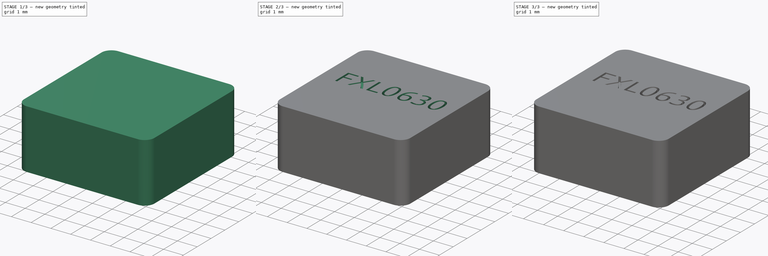
[diagram: build sequence overview — one tinted view per stage of 3, left to right]
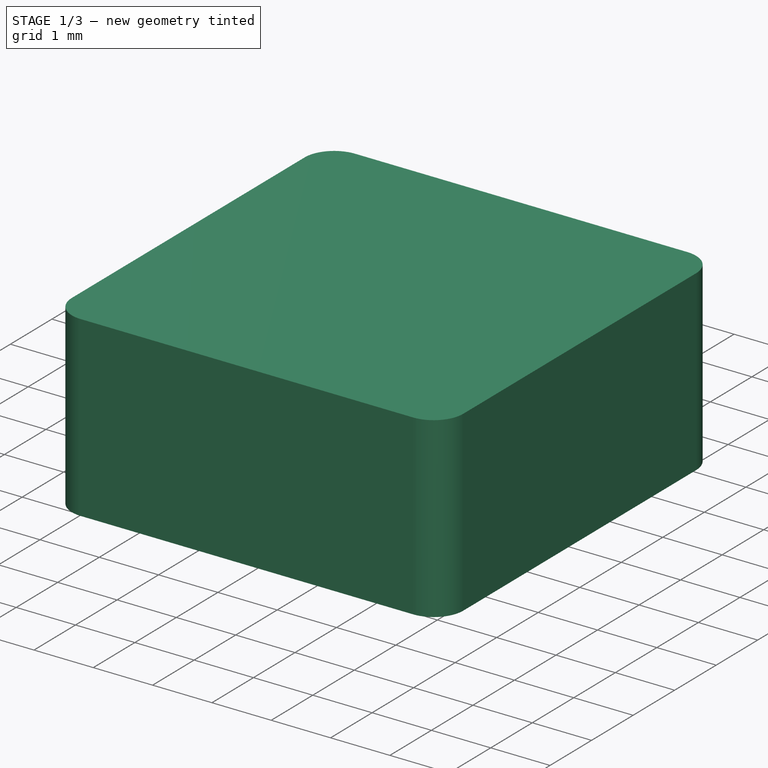
[diagram: stage 1 of 3 — iso view after this stage's code; geometry added in this stage tinted green]
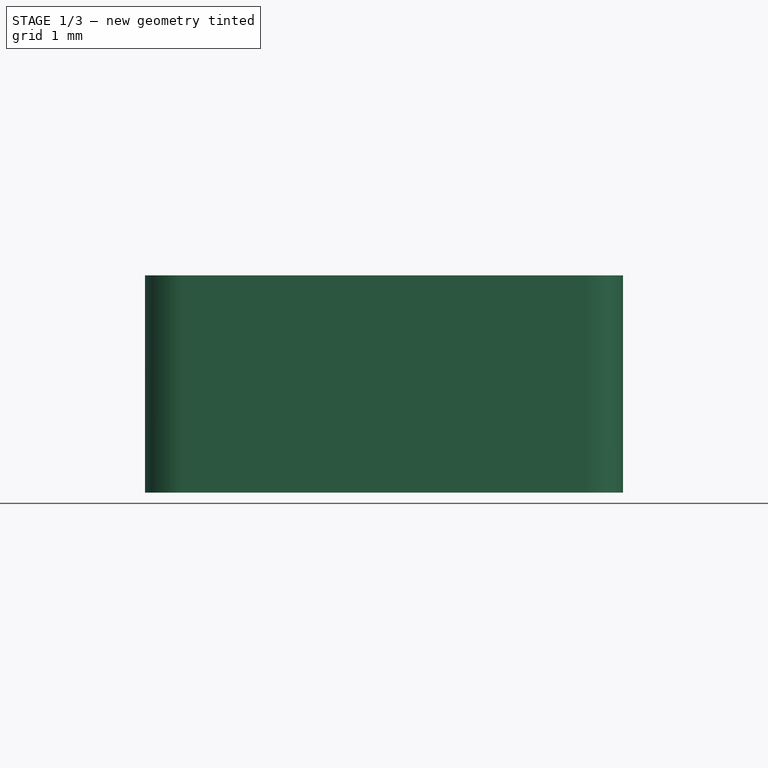
[diagram: stage 1 of 3 — front view after this stage's code; geometry added in this stage tinted green]
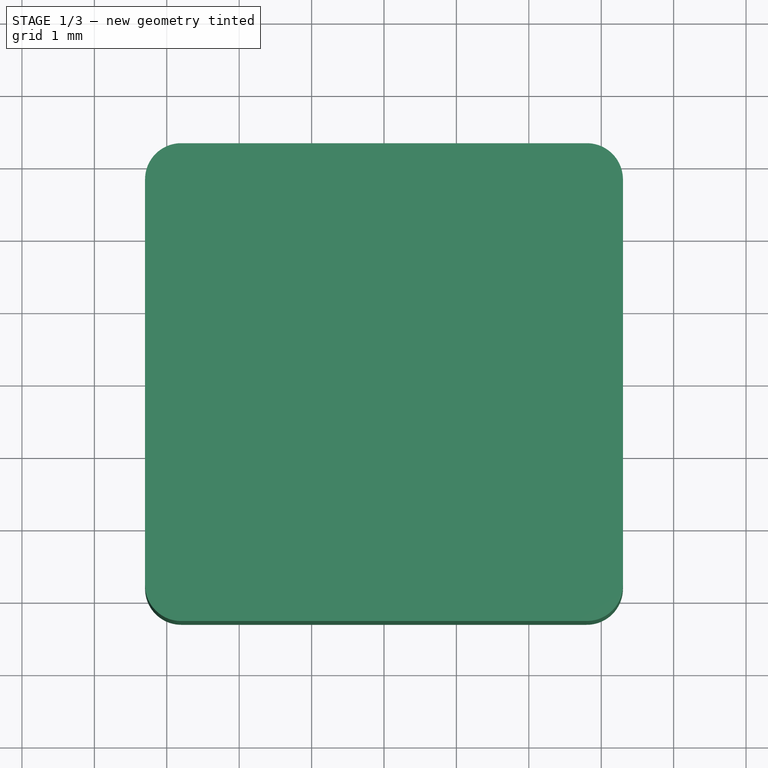
[diagram: stage 1 of 3 — top view after this stage's code; geometry added in this stage tinted green]
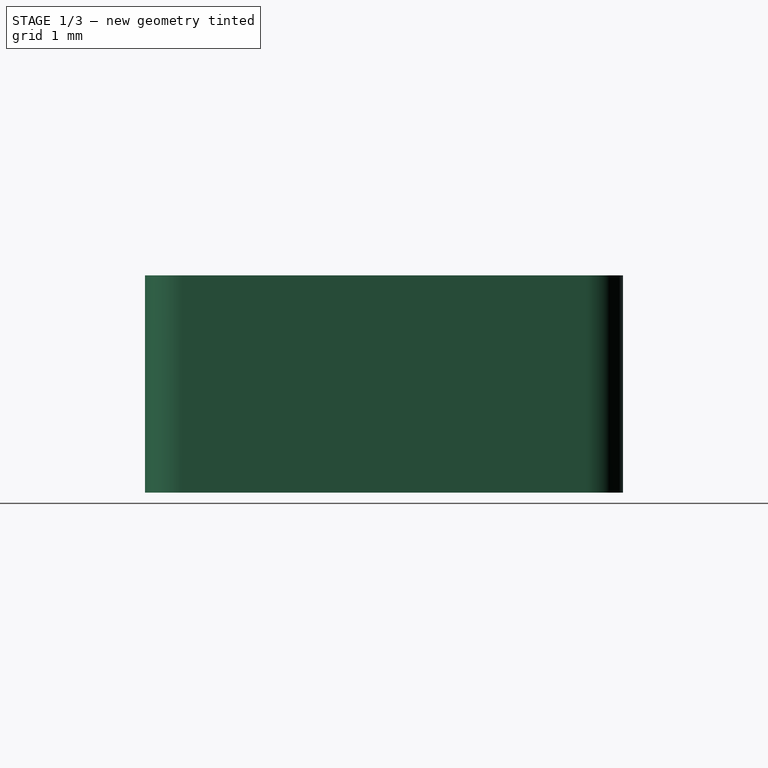
[diagram: stage 1 of 3 — right view after this stage's code; geometry added in this stage tinted green]
FCSTD DOCUMENT  (FreeCAD 1.0R39319 (Git))
Label: IND-FXL0630
License: All rights reserved
LicenseURL: http://en.wikipedia.org/wiki/All_rights_reserved
objects: Sketcher::SketchObject×2, PartDesign::Pad×2, PartDesign::Body×2, App::Part×2, Part::Mirroring×1, PartDesign::Fillet×1, Part::Part2DObjectPython×1, PartDesign::Pocket×1
note: 20 computed .brp shape members not serialized (recipe doc carries the construction recipe); baked Part::Feature solids carry a one-line shape summary decoded from their .brp

FEATURE [Sketcher::SketchObject] Sketch
  ArcFitTolerance = 0
  AttachmentSupport = -> [XY_Plane002]
  FullyConstrained = true
  MakeInternals = false
  MapMode = 5
  sketch-geometry (5):
    g0: LineSegment StartX=-3.3 StartY=-3.3 StartZ=0 EndX=-3.3 EndY=3.3 EndZ=0
    g1: LineSegment StartX=-3.3 StartY=3.3 StartZ=0 EndX=3.3 EndY=3.3 EndZ=0
    g2: LineSegment StartX=3.3 StartY=3.3 StartZ=0 EndX=3.3 EndY=-3.3 EndZ=0
    g3: LineSegment StartX=3.3 StartY=-3.3 StartZ=0 EndX=-3.3 EndY=-3.3 EndZ=0
    g4: GeomPoint [constr] X=0 Y=0 Z=0
  constraints (12):
    c: Coincident(g0,g1)
    c: Coincident(g1,g2)
    c: Coincident(g2,g3)
    c: Coincident(g3,g0)
    c: Horizontal(g1)
    c: Horizontal(g3)
    c: Vertical(g0)
    c: Vertical(g2)
    c: Symmetric(g1,g0,g4)
    c: Coincident(g4,g-1)
    c: DistanceX(g1,g1) = 6.6
    c: DistanceY(g2,g2) = 6.6
FEATURE [PartDesign::Pad] Pad
  Direction = (0,0,1)
  Length = 3
  Length2 = 10
  Profile = -> Sketch
  ReferenceAxis = -> Sketch [N_Axis]
  Suppressed = false
  Type = 0
FEATURE [App::Part] Part001  label="solderpads"
  Group = -> [Body001,Part__Mirroring]
  Origin = -> Origin001
FEATURE [PartDesign::Fillet] Fillet
  Base = -> Pad [Edge1,Edge8,Edge5,Edge2]
  BaseFeature = -> Pad
  Radius = 0.5
  SupportTransform = false
  Suppressed = false
  UseAllEdges = false
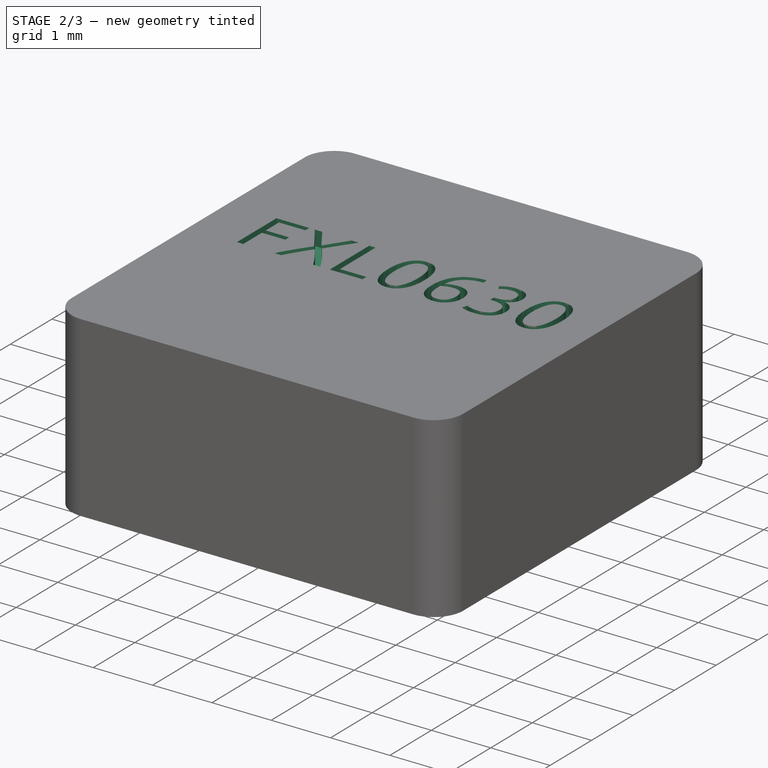
[diagram: stage 2 of 3 — iso view after this stage's code; geometry added in this stage tinted green]
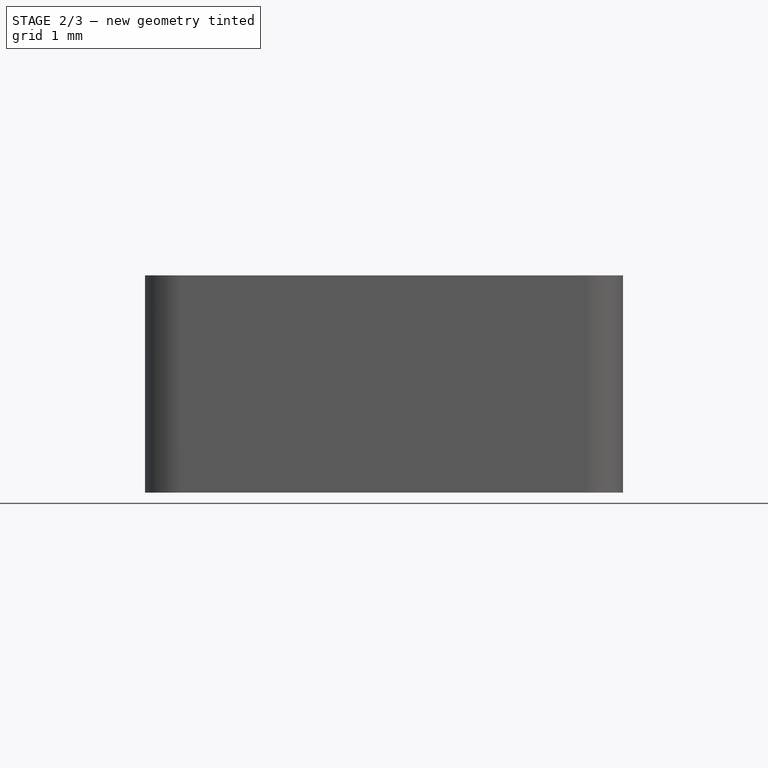
[diagram: stage 2 of 3 — front view after this stage's code; geometry added in this stage tinted green]
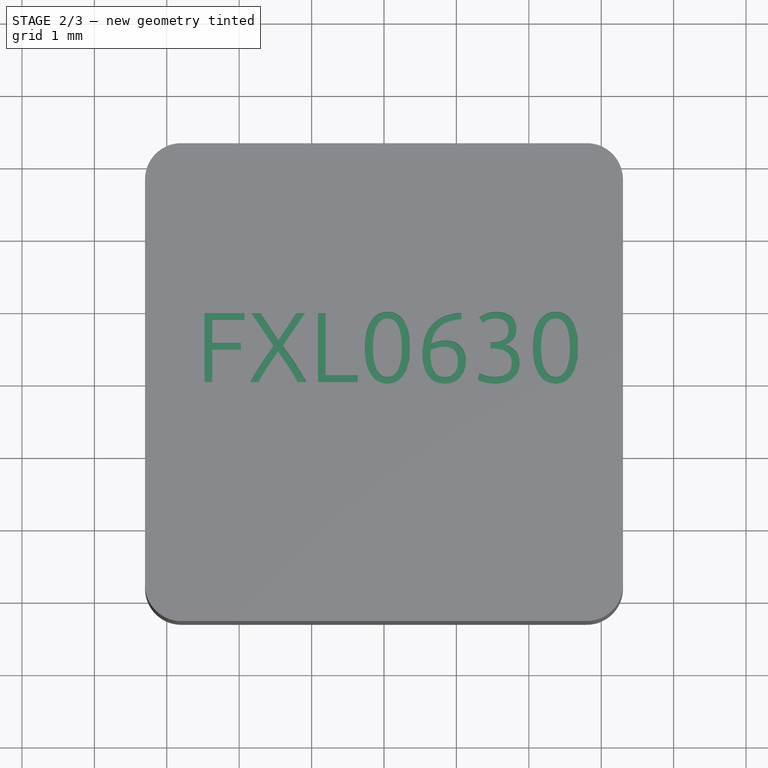
[diagram: stage 2 of 3 — top view after this stage's code; geometry added in this stage tinted green]
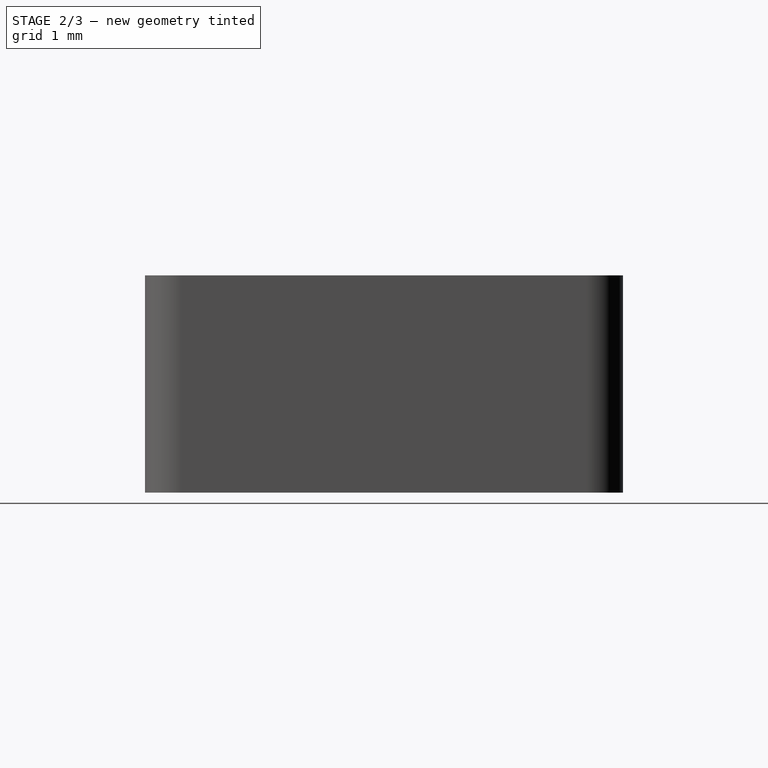
[diagram: stage 2 of 3 — right view after this stage's code; geometry added in this stage tinted green]
FEATURE [App::Part] Part  label="cover"
  Group = -> [Body]
  Origin = -> Origin
FEATURE [PartDesign::Body] Body  label="coverbody"
  AllowCompound = false
  Group = -> [Sketch,Pad,Fillet,ShapeString001,Pocket]
  Origin = -> Origin002
  Placement = pos=(0,0,0.25) rot=(0,0,1;0rad)
  Tip = -> Pocket
FEATURE [Part::Part2DObjectPython] ShapeString001  # Draft 2D object (typed FeaturePython)
  AttachmentOffset = pos=(-2.6,0,0) rot=(0,0,1;0rad)
  AttachmentSupport = -> [Pocket]
  FontFile = /run/host/fonts/truetype/ubuntu/Ubuntu-R.ttf
  Fuse = false
  Justification = 6
  JustificationReference = 0
  KeepLeftMargin = true
  MakeFace = true
  MapMode = 5
  ObliqueAngle = 0
  Placement = pos=(-2.6,0,3) rot=(0,0,1;0rad)
  ScaleToSize = false
  Size = 0.5
  String = FXL0630
  Tracking = 0
FEATURE [PartDesign::Pocket] Pocket
  BaseFeature = -> Fillet
  Direction = (0,0,-1)
  Length = 0.25
  Length2 = 5
  Profile = -> ShapeString001
  ReferenceAxis = -> ShapeString001 [N_Axis]
  Refine = true
  Suppressed = false
  Type = 0
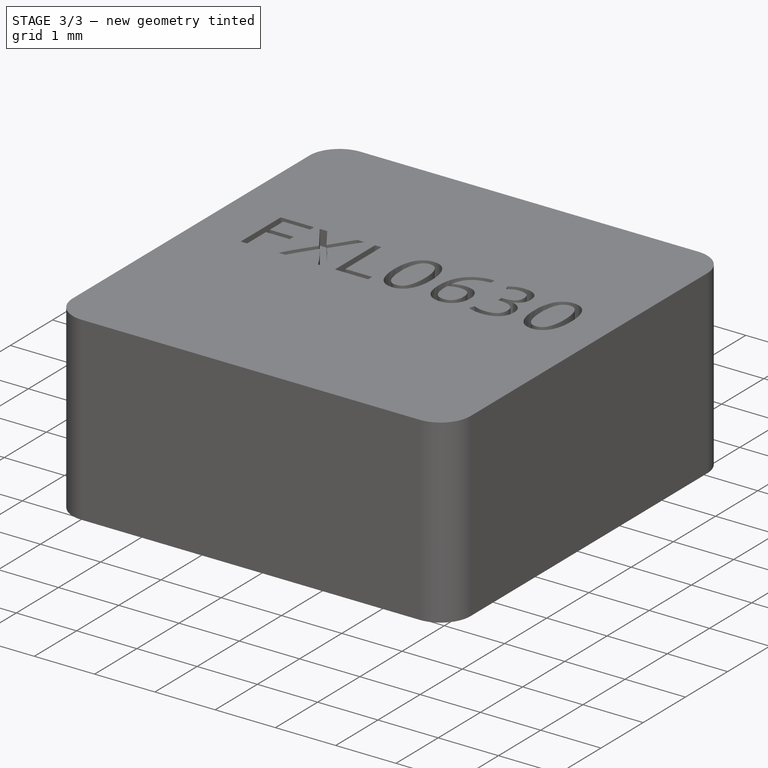
[diagram: stage 3 of 3 — iso view after this stage's code; geometry added in this stage tinted green]
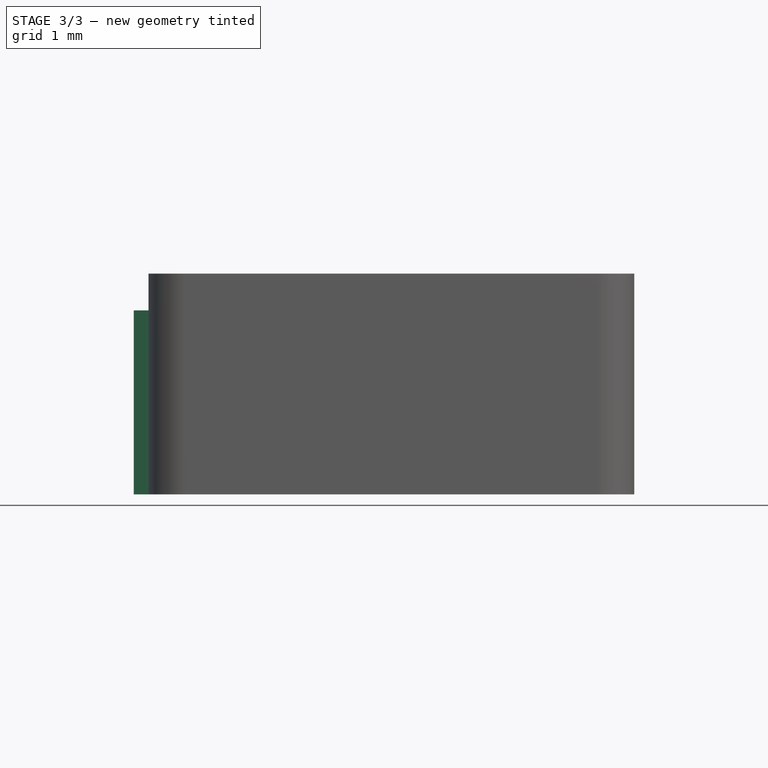
[diagram: stage 3 of 3 — front view after this stage's code; geometry added in this stage tinted green]
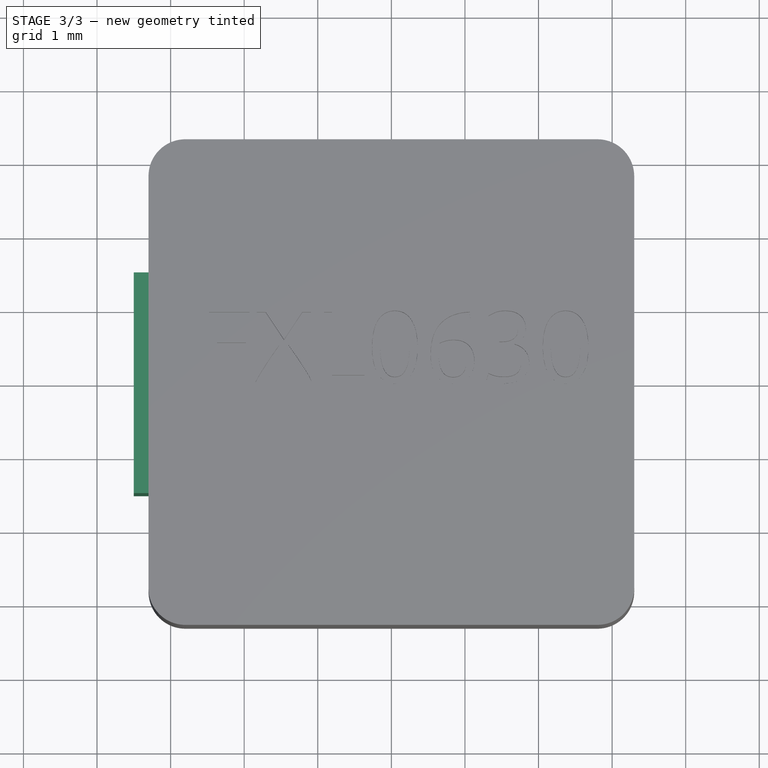
[diagram: stage 3 of 3 — top view after this stage's code; geometry added in this stage tinted green]
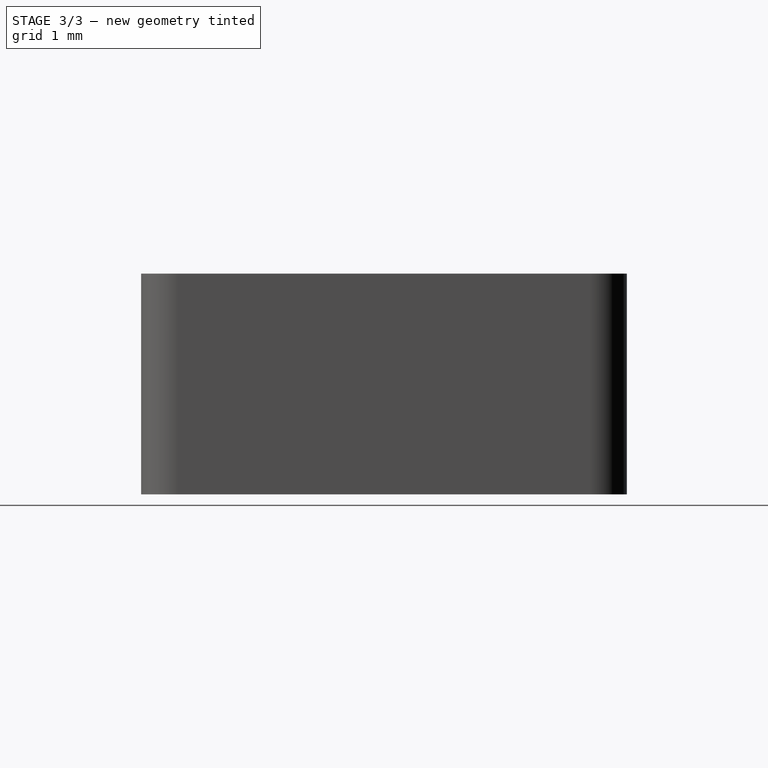
[diagram: stage 3 of 3 — right view after this stage's code; geometry added in this stage tinted green]
FEATURE [Sketcher::SketchObject] Sketch002
  ArcFitTolerance = 0
  AttachmentSupport = -> [XY_Plane003]
  FullyConstrained = true
  MakeInternals = false
  MapMode = 5
  expr: Constraints[12] = 7 mm / 2
  sketch-geometry (5):
    g0: LineSegment StartX=1.9 StartY=-1.5 StartZ=0 EndX=1.9 EndY=1.5 EndZ=0
    g1: LineSegment StartX=1.9 StartY=1.5 StartZ=0 EndX=3.5 EndY=1.5 EndZ=0
    g2: LineSegment StartX=3.5 StartY=1.5 StartZ=0 EndX=3.5 EndY=-1.5 EndZ=0
    g3: LineSegment StartX=3.5 StartY=-1.5 StartZ=0 EndX=1.9 EndY=-1.5 EndZ=0
    g4: GeomPoint [constr] X=2.7 Y=0 Z=0
  constraints (13):
    c: Coincident(g0,g1)
    c: Coincident(g1,g2)
    c: Coincident(g2,g3)
    c: Coincident(g3,g0)
    c: Horizontal(g1)
    c: Horizontal(g3)
    c: Vertical(g0)
    c: Vertical(g2)
    c: Symmetric(g1,g0,g4)
    c: PointOnObject(g4,g-1)
    c: DistanceX(g1,g1) = 1.6
    c: DistanceY(g2,g2) = 3
    c: DistanceX(g-1,g2) = 3.5
FEATURE [PartDesign::Pad] Pad001
  Direction = (0,0,1)
  Length = 2.5
  Length2 = 10
  Profile = -> Sketch002
  ReferenceAxis = -> Sketch002 [N_Axis]
  Suppressed = false
  Type = 0
FEATURE [PartDesign::Body] Body001  label="solderpadsbody"
  AllowCompound = false
  Group = -> [Sketch002,Pad001]
  Origin = -> Origin003
  Tip = -> Pad001
FEATURE [Part::Mirroring] Part__Mirroring  label="solderpadsbody (Mirror #1)"
  Base = (7.15256e-07,0,1.25)
  Normal = (1,0,-1.19209e-07)
  Source = -> Body001
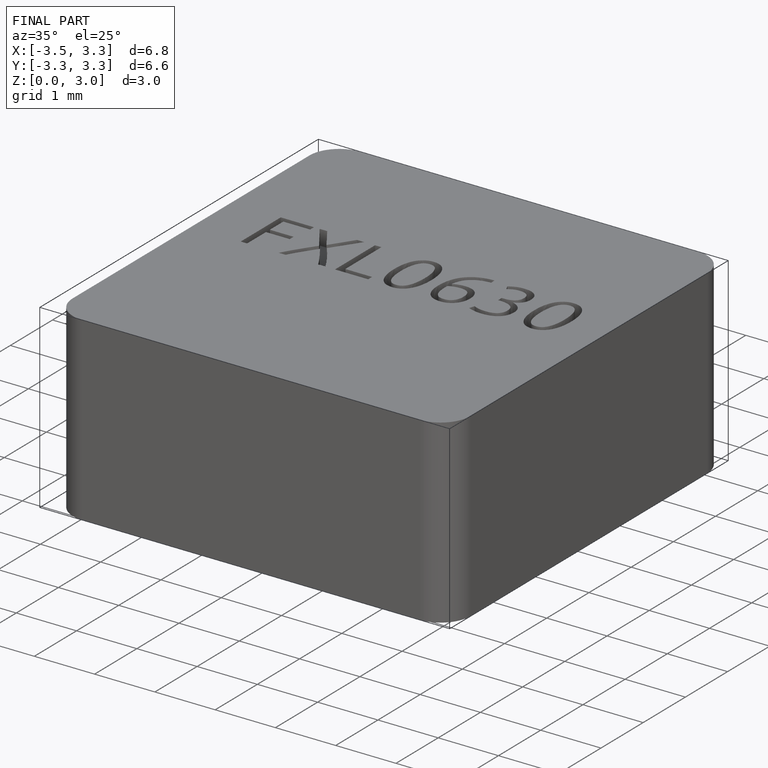
[diagram: finished part — iso view with bounding-box wireframe]
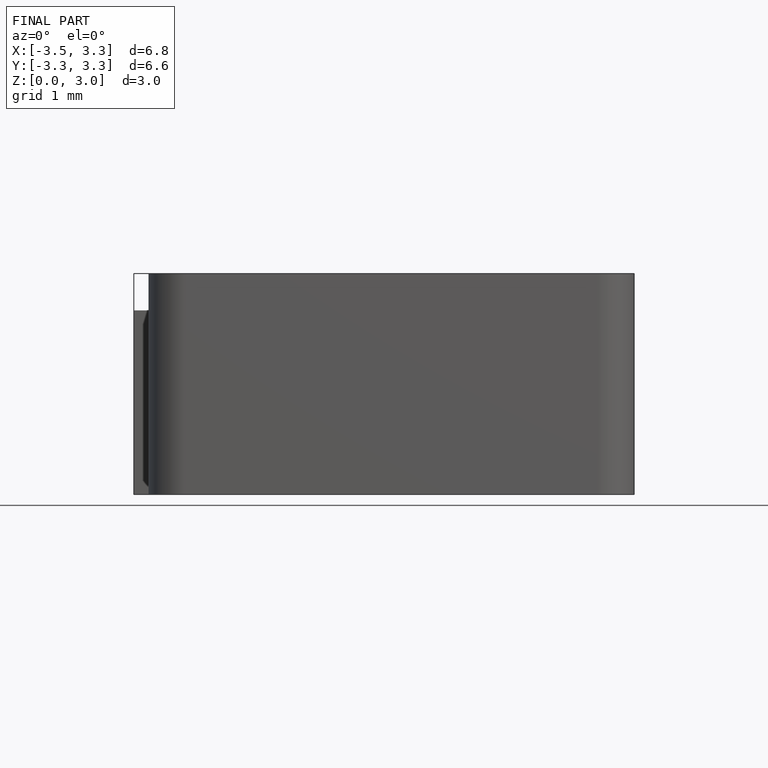
[diagram: finished part — front view with bounding-box wireframe]
